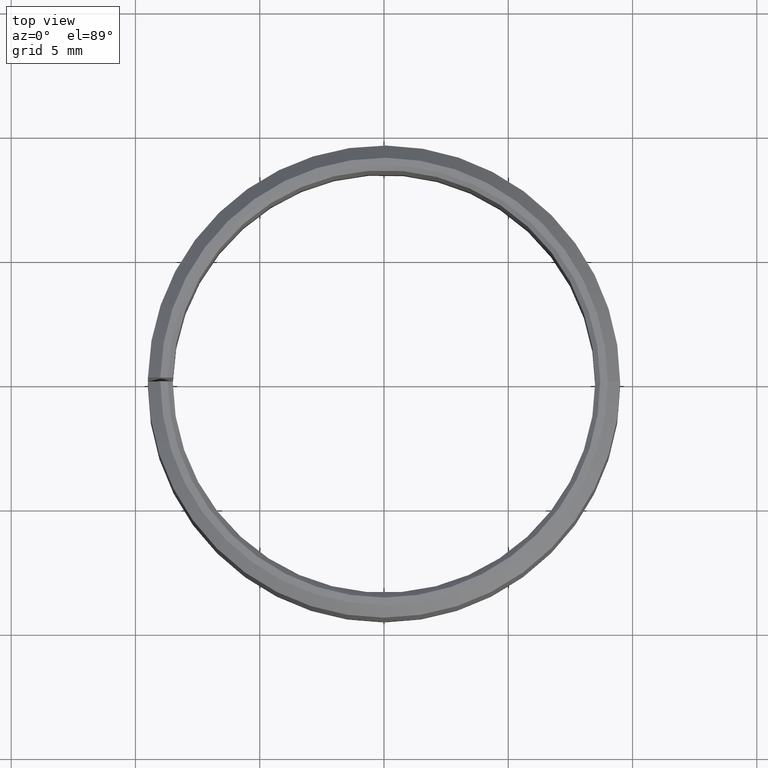
[diagram: clean part render]
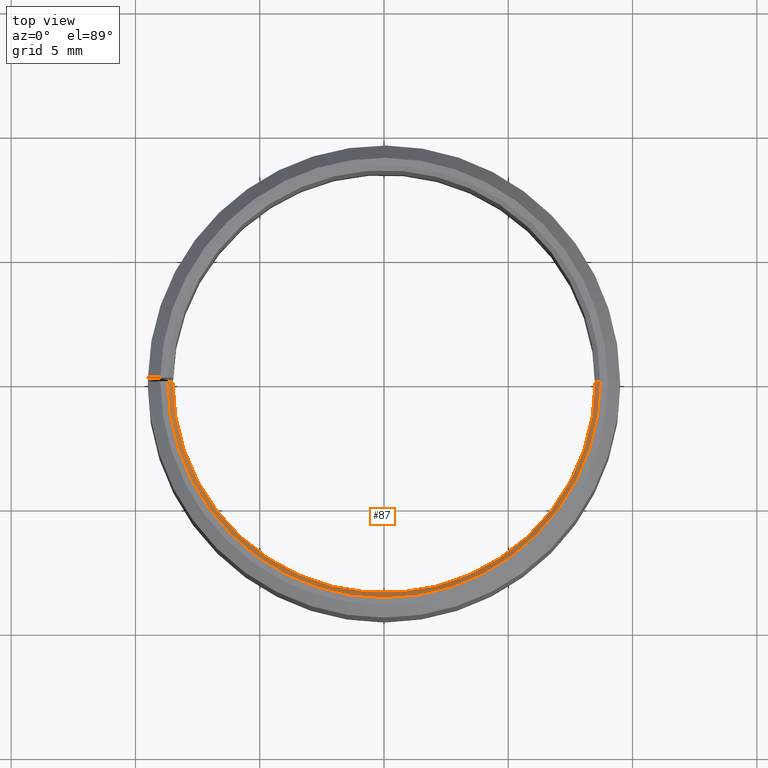
[diagram: same view with one face highlighted and labeled with its STEP entity id]
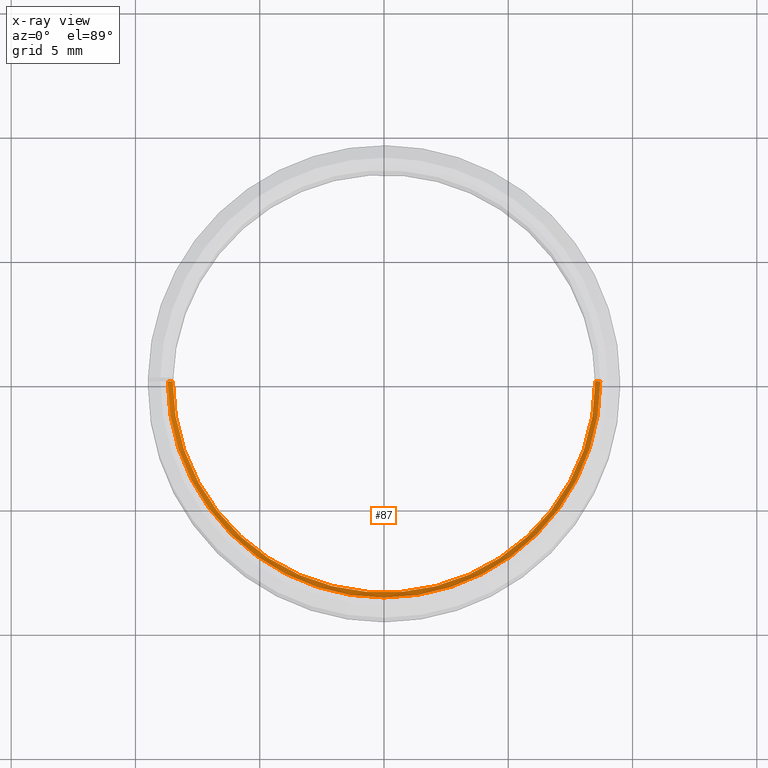
[diagram: x-ray of the same camera — body ghosted, the highlighted face saturated]
A machine part, top view. The second image highlights one B-rep face of the part: STEP entity #87.
The next image is the same camera in x-ray: the body ghosted, the highlighted face saturated — about 0% of this face is hidden behind the body in this view.
In plain terms, the highlighted conical surface has half-angle 45 deg.
Its self-contained STEP definition (entity closure, byte-faithful):
#87=ADVANCED_FACE('',(#116),#117,.F.);
#116=FACE_OUTER_BOUND('',#148,.T.);
#117=CONICAL_SURFACE('',#149,8.6,0.785398163397437);
#148=EDGE_LOOP('',(#244,#245,#246,#247));
#149=AXIS2_PLACEMENT_3D('',#248,#249,#250);
#244=ORIENTED_EDGE('',*,*,#284,.T.);
#245=ORIENTED_EDGE('',*,*,#315,.F.);
#246=ORIENTED_EDGE('',*,*,#316,.F.);
#247=ORIENTED_EDGE('',*,*,#313,.T.);
#248=CARTESIAN_POINT('',(7.99314339413764E-015,-9.50900401119003E-015,11.9));
#249=DIRECTION('',(5.48707263966372E-016,-6.09939603923743E-016,1.0));
#250=DIRECTION('',(-1.0,-3.21624529935328E-016,5.48707263966372E-016));
#284=EDGE_CURVE('',#326,#318,#327,.T.);
#313=EDGE_CURVE('',#373,#326,#374,.T.);
#315=EDGE_CURVE('',#376,#318,#377,.T.);
#316=EDGE_CURVE('',#373,#376,#378,.T.);
#318=VERTEX_POINT('',#380);
#326=VERTEX_POINT('',#390);
#327=LINE('',#391,#392);
#373=VERTEX_POINT('',#454);
#374=CIRCLE('',#455,8.7);
#376=VERTEX_POINT('',#458);
#377=CIRCLE('',#459,8.5);
#378=LINE('',#460,#461);
#380=CARTESIAN_POINT('',(8.50000000000001,-7.75515132562262E-015,11.8));
#390=CARTESIAN_POINT('',(8.70000000000001,-7.83730727640325E-015,12.0));
#391=CARTESIAN_POINT('',(8.6,-7.79622930101293E-015,11.9));
#392=VECTOR('',#472,1.0);
#454=CARTESIAN_POINT('',(-8.69999999999999,-1.21175733884155E-014,12.0));
#455=AXIS2_PLACEMENT_3D('',#525,#526,#527);
#458=CARTESIAN_POINT('',(-8.49999999999999,-1.21533051665687E-014,11.8));
#459=AXIS2_PLACEMENT_3D('',#529,#530,#531);
#460=CARTESIAN_POINT('',(-8.69999999999999,-1.21175733884155E-014,12.0));
#461=VECTOR('',#532,10.0);
#472=DIRECTION('',(-0.70710678118654,2.90465149559065E-016,-0.707106781186555));
#525=CARTESIAN_POINT('',(8.04801412053427E-015,-9.56387473758667E-015,12.0));
#526=DIRECTION('',(5.48707263966372E-016,-6.09939603923743E-016,1.0));
#527=DIRECTION('',(-1.0,-3.21624529935328E-016,5.48707263966372E-016));
#529=CARTESIAN_POINT('',(7.938272667741E-015,-9.45413328479339E-015,11.8));
#530=DIRECTION('',(5.48707263966372E-016,-6.09939603923743E-016,1.0));
#531=DIRECTION('',(-1.0,-3.21624529935327E-016,5.48707263966372E-016));
#532=DIRECTION('',(0.707106781186539,6.15417513350148E-016,-0.707106781186556));